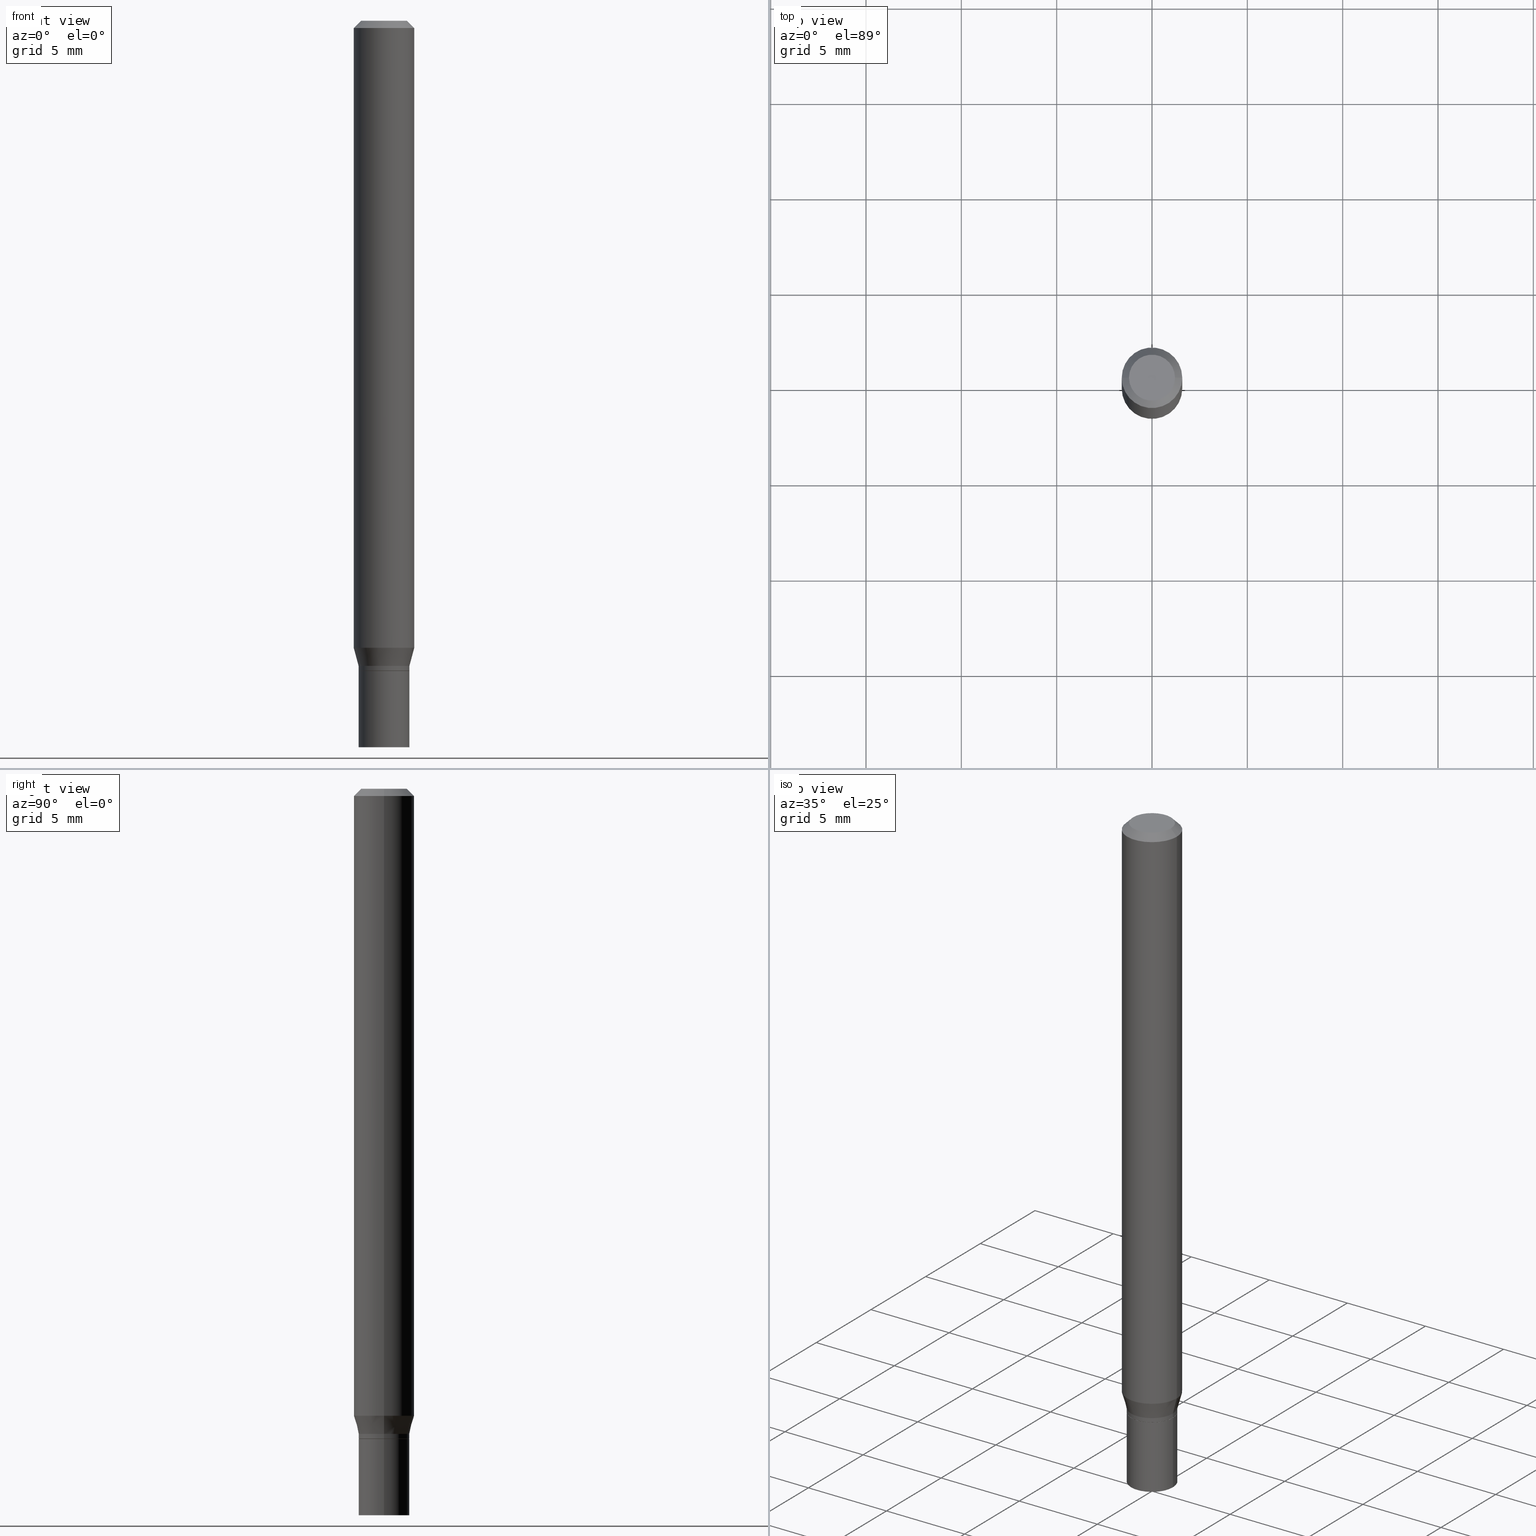
[diagram: canonical four-view strip — front | top / right | iso, engineering-drawing reading convention]
A machine part, canonical four-view strip (front | top / right | iso — engineering-drawing reading convention). The complete STEP part file that produces these views, byte-faithful:
ISO-10303-21;
HEADER;
FILE_DESCRIPTION (( 'STEP AP203' ),
    '1' );
FILE_NAME ('00438.STEP',
    '2024-03-19T21:18:29',
    ( '' ),
    ( '' ),
    'SwSTEP 2.0',
    'SolidWorks 2023',
    '' );
FILE_SCHEMA (( 'CONFIG_CONTROL_DESIGN' ));
ENDSEC;

DATA;
#1 = ORIENTED_EDGE ( 'NONE', *, *, #23, .T. ) ;
#2 = LINE ( 'NONE', #431, #10 ) ;
#3 = CALENDAR_DATE ( 2024, 19, 3 ) ;
#4 = CARTESIAN_POINT ( 'NONE',  ( -0.06250000000000000000, 3.840629472727444916E-16, -0.01499999999999999944 ) ) ;
#5 = DATE_AND_TIME ( #186, #297 ) ;
#6 = CARTESIAN_POINT ( 'NONE',  ( 0.06250000000000000000, -4.956784453192048385E-15, -1.294679491924311199 ) ) ;
#7 = ADVANCED_FACE ( 'NONE', ( #453 ), #20, .T. ) ;
#8 = ORIENTED_EDGE ( 'NONE', *, *, #212, .F. ) ;
#9 = DIRECTION ( 'NONE',  ( -2.445468806185136877E-29, 3.491481338843145188E-15, 1.000000000000000000 ) ) ;
#10 = VECTOR ( 'NONE', #287, 39.37007874015748143 ) ;
#11 = DIRECTION ( 'NONE',  ( 1.000000000000000000, -6.982962677686261189E-15, 0.000000000000000000 ) ) ;
#12 = ORIENTED_EDGE ( 'NONE', *, *, #95, .T. ) ;
#13 = EDGE_LOOP ( 'NONE', ( #306, #369, #1, #280 ) ) ;
#14 = LOCAL_TIME ( 17, 18, 29.00000000000000000, #260 ) ;
#15 = CARTESIAN_POINT ( 'NONE',  ( 0.000000000000000000, 0.000000000000000000, 0.000000000000000000 ) ) ;
#16 = ORIENTED_EDGE ( 'NONE', *, *, #146, .T. ) ;
#17 = EDGE_CURVE ( 'NONE', #321, #263, #427, .T. ) ;
#18 = FACE_OUTER_BOUND ( 'NONE', #201, .T. ) ;
#19 = DIRECTION ( 'NONE',  ( -2.445468806185136877E-29, 3.491481338843145188E-15, 1.000000000000000000 ) ) ;
#20 = CONICAL_SURFACE ( 'NONE', #61, 0.05249999999999991479, 0.2617993877991502960 ) ;
#21 = DIRECTION ( 'NONE',  ( 1.000000000000000000, -6.982962677686267499E-15, 4.852736867747366768E-29 ) ) ;
#22 = AXIS2_PLACEMENT_3D ( 'NONE', #185, #429, #352 ) ;
#23 = EDGE_CURVE ( 'NONE', #373, #321, #56, .T. ) ;
#24 = PERSON_AND_ORGANIZATION ( #366, #54 ) ;
#25 = APPROVAL ( #340, 'UNSPECIFIED' ) ;
#26 = FACE_OUTER_BOUND ( 'NONE', #91, .T. ) ;
#27 = ORIENTED_EDGE ( 'NONE', *, *, #17, .F. ) ;
#28 = CIRCLE ( 'NONE', #83, 0.05249999999999991479 ) ;
#29 = DIRECTION ( 'NONE',  ( 1.000000000000000000, -6.982962677686261189E-15, 0.000000000000000000 ) ) ;
#30 = DIRECTION ( 'NONE',  ( -2.445468806185136877E-29, 3.491481338843145188E-15, 1.000000000000000000 ) ) ;
#31 = EDGE_CURVE ( 'NONE', #458, #197, #28, .T. ) ;
#32 = PLANE ( 'NONE',  #22 ) ;
#33 = CARTESIAN_POINT ( 'NONE',  ( 0.05249999999999991479, -3.666055405785284205E-16, 2.559992807292862157E-30 ) ) ;
#34 = CARTESIAN_POINT ( 'NONE',  ( 3.257364449838602072E-29, -4.650653143339070101E-15, -1.332000000000000073 ) ) ;
#35 = DATE_AND_TIME ( #120, #121 ) ;
#36 = CARTESIAN_POINT ( 'NONE',  ( 0.000000000000000000, 0.000000000000000000, 0.000000000000000000 ) ) ;
#37 = DIRECTION ( 'NONE',  ( -1.000000000000000000, 6.982962677686266711E-15, 0.000000000000000000 ) ) ;
#38 = COORDINATED_UNIVERSAL_TIME_OFFSET ( 5, 0, .BEHIND. ) ;
#39 = DIRECTION ( 'NONE',  ( -2.445468806185136597E-29, 3.491481338843145583E-15, 1.000000000000000000 ) ) ;
#40 = DATE_AND_TIME ( #362, #96 ) ;
#41 = CIRCLE ( 'NONE', #105, 0.05249999999999999806 ) ;
#42 = PERSON_AND_ORGANIZATION ( #366, #54 ) ;
#43 = DESIGN_CONTEXT ( 'detailed design', #44, 'design' ) ;
#44 = APPLICATION_CONTEXT ( 'configuration controlled 3d designs of mechanical parts and assemblies' ) ;
#45 = VECTOR ( 'NONE', #9, 39.37007874015748143 ) ;
#46 = EDGE_CURVE ( 'NONE', #296, #235, #351, .T. ) ;
#47 = DIRECTION ( 'NONE',  ( 1.000000000000000000, -6.982962677686262766E-15, 0.000000000000000000 ) ) ;
#48 = EDGE_CURVE ( 'NONE', #284, #466, #344, .T. ) ;
#49 = CYLINDRICAL_SURFACE ( 'NONE', #134, 0.05249999999999991479 ) ;
#50 = ORIENTED_EDGE ( 'NONE', *, *, #320, .F. ) ;
#51 = EDGE_LOOP ( 'NONE', ( #192, #313, #404, #108 ) ) ;
#52 = PERSON_AND_ORGANIZATION_ROLE ( 'creator' ) ;
#53 = CARTESIAN_POINT ( 'NONE',  ( 3.316907271900976096E-16, 0.04749999999999999362, -2.653275547260257586E-16 ) ) ;
#54 = ORGANIZATION ( 'UNSPECIFIED', 'UNSPECIFIED', '' ) ;
#55 = CARTESIAN_POINT ( 'NONE',  ( 0.05249999999999999806, -5.052173497306030121E-15, -1.342000000000000082 ) ) ;
#56 = LINE ( 'NONE', #305, #234 ) ;
#57 = AXIS2_PLACEMENT_3D ( 'NONE', #132, #387, #230 ) ;
#58 = CLOSED_SHELL ( 'NONE', ( #438, #440, #269, #420 ) ) ;
#59 = CARTESIAN_POINT ( 'NONE',  ( 0.06250000000000000000, -4.888073874380388472E-16, -0.01499999999999999944 ) ) ;
#60 = EDGE_CURVE ( 'NONE', #298, #153, #405, .T. ) ;
#61 = AXIS2_PLACEMENT_3D ( 'NONE', #388, #348, #167 ) ;
#62 = EDGE_LOOP ( 'NONE', ( #124, #448 ) ) ;
#63 = EDGE_LOOP ( 'NONE', ( #441, #356, #425, #339 ) ) ;
#64 = DIRECTION ( 'NONE',  ( -0.2588190451025216277, 5.211531920934551831E-15, 0.9659258262890679791 ) ) ;
#65 = ORIENTED_EDGE ( 'NONE', *, *, #31, .F. ) ;
#66 = DIRECTION ( 'NONE',  ( 1.000000000000000000, 0.000000000000000000, 0.000000000000000000 ) ) ;
#67 = CARTESIAN_POINT ( 'NONE',  ( -0.04749999999999999362, 3.578768372314206562E-16, -1.989643822619551895E-16 ) ) ;
#68 = PERSON_AND_ORGANIZATION_ROLE ( 'design_owner' ) ;
#69 = ORIENTED_EDGE ( 'NONE', *, *, #316, .T. ) ;
#70 = LINE ( 'NONE', #33, #394 ) ;
#71 = DIRECTION ( 'NONE',  ( -2.445468806185136597E-29, 3.491481338843145583E-15, 1.000000000000000000 ) ) ;
#72 = ORIENTED_EDGE ( 'NONE', *, *, #403, .T. ) ;
#73 = FACE_OUTER_BOUND ( 'NONE', #445, .T. ) ;
#74 = ORIENTED_EDGE ( 'NONE', *, *, #169, .T. ) ;
#75 = AXIS2_PLACEMENT_3D ( 'NONE', #271, #415, #170 ) ;
#76 = ORIENTED_EDGE ( 'NONE', *, *, #138, .F. ) ;
#77 = CARTESIAN_POINT ( 'NONE',  ( 3.668203209277705088E-31, -5.237222008264718399E-17, -0.01499999999999999944 ) ) ;
#78 = APPROVAL_DATE_TIME ( #40, #326 ) ;
#79 = ORIENTED_EDGE ( 'NONE', *, *, #300, .F. ) ;
#80 = DIRECTION ( 'NONE',  ( 0.7071067811865522357, -7.319954787623271823E-15, -0.7071067811865427988 ) ) ;
#81 = AXIS2_PLACEMENT_3D ( 'NONE', #77, #117, #37 ) ;
#82 = FACE_OUTER_BOUND ( 'NONE', #337, .T. ) ;
#83 = AXIS2_PLACEMENT_3D ( 'NONE', #34, #39, #29 ) ;
#84 = ORIENTED_EDGE ( 'NONE', *, *, #208, .T. ) ;
#85 = CARTESIAN_POINT ( 'NONE',  ( 3.281819137900453057E-29, -4.685567956727500961E-15, -1.342000000000000082 ) ) ;
#86 = CC_DESIGN_APPROVAL ( #442, ( #87 ) ) ;
#87 = SECURITY_CLASSIFICATION ( '', '', #433 ) ;
#88 = ORIENTED_EDGE ( 'NONE', *, *, #237, .F. ) ;
#89 = CARTESIAN_POINT ( 'NONE',  ( 3.281819137900453057E-29, -4.685567956727500961E-15, -1.342000000000000082 ) ) ;
#90 = ORIENTED_EDGE ( 'NONE', *, *, #408, .F. ) ;
#91 = EDGE_LOOP ( 'NONE', ( #161, #274 ) ) ;
#92 = CARTESIAN_POINT ( 'NONE',  ( 3.257364449838602072E-29, -4.650653143339070101E-15, -1.332000000000000073 ) ) ;
#93 = AXIS2_PLACEMENT_3D ( 'NONE', #295, #372, #119 ) ;
#94 = ORIENTED_EDGE ( 'NONE', *, *, #289, .T. ) ;
#95 = EDGE_CURVE ( 'NONE', #197, #458, #156, .T. ) ;
#96 = LOCAL_TIME ( 17, 18, 29.00000000000000000, #331 ) ;
#97 = DIRECTION ( 'NONE',  ( 1.000000000000000000, -6.982962677686268288E-15, 0.000000000000000000 ) ) ;
#98 = CARTESIAN_POINT ( 'NONE',  ( 3.281819137900453057E-29, -4.685567956727500961E-15, -1.342000000000000082 ) ) ;
#99 = CARTESIAN_POINT ( 'NONE',  ( 0.05249999999999999806, -5.603827548843247337E-15, -1.500000000000000222 ) ) ;
#100 = DIRECTION ( 'NONE',  ( 0.000000000000000000, 0.000000000000000000, 1.000000000000000000 ) ) ;
#101 = APPROVAL_PERSON_ORGANIZATION ( #446, #25, #286 ) ;
#102 = CARTESIAN_POINT ( 'NONE',  ( -0.06250000000000000000, -1.842271543109589873E-15, -0.01499999999999999944 ) ) ;
#103 = DIRECTION ( 'NONE',  ( -2.445468806185136597E-29, 3.491481338843145583E-15, 1.000000000000000000 ) ) ;
#104 = ADVANCED_FACE ( 'NONE', ( #73 ), #324, .T. ) ;
#105 = AXIS2_PLACEMENT_3D ( 'NONE', #434, #361, #97 ) ;
#106 = DIRECTION ( 'NONE',  ( -2.445468806185136597E-29, 3.491481338843145583E-15, 1.000000000000000000 ) ) ;
#107 = APPLICATION_PROTOCOL_DEFINITION ( 'international standard', 'config_control_design', 1994, #118 ) ;
#108 = ORIENTED_EDGE ( 'NONE', *, *, #338, .F. ) ;
#109 = VECTOR ( 'NONE', #80, 39.37007874015748143 ) ;
#110 = AXIS2_PLACEMENT_3D ( 'NONE', #215, #244, #275 ) ;
#111 = CARTESIAN_POINT ( 'NONE',  ( -0.06250000000000000000, 4.440892098500626162E-16, -3.074334431409316114E-30 ) ) ;
#112 = DIRECTION ( 'NONE',  ( -2.445468806185136877E-29, 3.491481338843145188E-15, 1.000000000000000000 ) ) ;
#113 = ADVANCED_FACE ( 'NONE', ( #357 ), #400, .T. ) ;
#114 = APPROVAL_DATE_TIME ( #35, #25 ) ;
#115 = ORIENTED_EDGE ( 'NONE', *, *, #23, .F. ) ;
#116 = CARTESIAN_POINT ( 'NONE',  ( 3.281819137900453057E-29, -4.685567956727500961E-15, -1.342000000000000082 ) ) ;
#117 = DIRECTION ( 'NONE',  ( 2.445468806185136597E-29, -3.491481338843145583E-15, -1.000000000000000000 ) ) ;
#118 = APPLICATION_CONTEXT ( 'configuration controlled 3d designs of mechanical parts and assemblies' ) ;
#119 = DIRECTION ( 'NONE',  ( 1.000000000000000000, -6.982962677686267499E-15, 4.852736867747366768E-29 ) ) ;
#120 = CALENDAR_DATE ( 2024, 19, 3 ) ;
#121 = LOCAL_TIME ( 17, 18, 29.00000000000000000, #323 ) ;
#122 = CARTESIAN_POINT ( 'NONE',  ( 0.05249999999999991479, -5.050427756636607829E-15, -1.341500000000000137 ) ) ;
#123 = PRODUCT_DEFINITION ( 'UNKNOWN', '', #258, #43 ) ;
#124 = ORIENTED_EDGE ( 'NONE', *, *, #146, .F. ) ;
#125 = CC_DESIGN_PERSON_AND_ORGANIZATION_ASSIGNMENT ( #42, #191, ( #123 ) ) ;
#126 = CARTESIAN_POINT ( 'NONE',  ( 0.06250000000000000000, -4.811533449433679005E-16, -0.01499999999999999944 ) ) ;
#127 = DIRECTION ( 'NONE',  ( -2.445468806185136597E-29, 3.491481338843145583E-15, 1.000000000000000000 ) ) ;
#128 =( GEOMETRIC_REPRESENTATION_CONTEXT ( 3 ) GLOBAL_UNCERTAINTY_ASSIGNED_CONTEXT ( ( #380 ) ) GLOBAL_UNIT_ASSIGNED_CONTEXT ( ( #386, #345, #149 ) ) REPRESENTATION_CONTEXT ( 'NONE', 'WORKASPACE' ) );
#129 = EDGE_LOOP ( 'NONE', ( #16, #72, #164, #88 ) ) ;
#130 = ORIENTED_EDGE ( 'NONE', *, *, #204, .T. ) ;
#131 = LINE ( 'NONE', #267, #364 ) ;
#132 = CARTESIAN_POINT ( 'NONE',  ( 3.668203209277704895E-29, -5.237222008264718177E-15, -1.500000000000000222 ) ) ;
#133 = ORIENTED_EDGE ( 'NONE', *, *, #408, .T. ) ;
#134 = AXIS2_PLACEMENT_3D ( 'NONE', #15, #163, #376 ) ;
#135 = CIRCLE ( 'NONE', #193, 0.05199999999999999067 ) ;
#136 = LINE ( 'NONE', #342, #367 ) ;
#137 = PRODUCT_DEFINITION_SHAPE ( 'NONE', 'NONE',  #123 ) ;
#138 = EDGE_CURVE ( 'NONE', #398, #458, #2, .T. ) ;
#139 = DIRECTION ( 'NONE',  ( 2.438088387897960049E-29, -3.491481338843145188E-15, -1.000000000000000000 ) ) ;
#140 = MANIFOLD_SOLID_BREP ( 'Body-Move/Copy2[2]', #165 ) ;
#141 = LINE ( 'NONE', #459, #180 ) ;
#142 = CIRCLE ( 'NONE', #205, 0.05249999999999991479 ) ;
#143 = CARTESIAN_POINT ( 'NONE',  ( 3.280596403497361377E-29, -4.683822216058081035E-15, -1.341500000000000137 ) ) ;
#144 = ORIENTED_EDGE ( 'NONE', *, *, #395, .F. ) ;
#145 = ORIENTED_EDGE ( 'NONE', *, *, #60, .F. ) ;
#146 = EDGE_CURVE ( 'NONE', #466, #284, #135, .T. ) ;
#147 = DIRECTION ( 'NONE',  ( 1.000000000000000000, -6.982962677686265922E-15, 4.876176775795935793E-29 ) ) ;
#148 = CARTESIAN_POINT ( 'NONE',  ( 3.166098311508524347E-29, -4.520349285836657505E-15, -1.294679491924311199 ) ) ;
#149 =( NAMED_UNIT ( * ) SI_UNIT ( $, .STERADIAN. ) SOLID_ANGLE_UNIT ( ) );
#150 = EDGE_CURVE ( 'NONE', #263, #321, #41, .T. ) ;
#151 = EDGE_LOOP ( 'NONE', ( #447, #74 ) ) ;
#152 = DATE_AND_TIME ( #293, #399 ) ;
#153 = VERTEX_POINT ( 'NONE', #59 ) ;
#154 = CONICAL_SURFACE ( 'NONE', #81, 0.06250000000000000000, 0.7853981633974549403 ) ;
#155 = APPROVAL_ROLE ( '' ) ;
#156 = CIRCLE ( 'NONE', #418, 0.05249999999999991479 ) ;
#157 = CIRCLE ( 'NONE', #437, 0.06250000000000000000 ) ;
#158 = LINE ( 'NONE', #253, #214 ) ;
#159 = DIRECTION ( 'NONE',  ( -2.445468806185136597E-29, 3.491481338843145583E-15, 1.000000000000000000 ) ) ;
#160 = PERSON_AND_ORGANIZATION ( #366, #54 ) ;
#161 = ORIENTED_EDGE ( 'NONE', *, *, #17, .T. ) ;
#162 = APPROVAL_STATUS ( 'not_yet_approved' ) ;
#163 = DIRECTION ( 'NONE',  ( -2.445468806185136597E-29, 3.491481338843145583E-15, 1.000000000000000000 ) ) ;
#164 = ORIENTED_EDGE ( 'NONE', *, *, #365, .F. ) ;
#165 = CLOSED_SHELL ( 'NONE', ( #354, #309, #104, #272, #7, #199, #113, #227, #175, #370, #390, #194 ) ) ;
#166 = AXIS2_PLACEMENT_3D ( 'NONE', #241, #209, #21 ) ;
#167 = DIRECTION ( 'NONE',  ( 1.000000000000000000, -6.982962677686261189E-15, 0.000000000000000000 ) ) ;
#168 = PLANE ( 'NONE',  #423 ) ;
#169 = EDGE_CURVE ( 'NONE', #298, #406, #303, .T. ) ;
#170 = DIRECTION ( 'NONE',  ( 1.000000000000000000, -6.982962677686265922E-15, 4.876176775795935793E-29 ) ) ;
#171 = CC_DESIGN_PERSON_AND_ORGANIZATION_ASSIGNMENT ( #436, #301, ( #258 ) ) ;
#172 =( LENGTH_UNIT ( ) NAMED_UNIT ( * ) SI_UNIT ( $, .METRE. ) );
#173 = CARTESIAN_POINT ( 'NONE',  ( 0.000000000000000000, 0.000000000000000000, 0.000000000000000000 ) ) ;
#174 = CIRCLE ( 'NONE', #57, 0.05249999999999999806 ) ;
#175 = ADVANCED_FACE ( 'NONE', ( #308 ), #168, .F. ) ;
#176 = DIRECTION ( 'NONE',  ( -2.445468806185136597E-29, 3.491481338843145583E-15, 1.000000000000000000 ) ) ;
#177 = CARTESIAN_POINT ( 'NONE',  ( 3.281819137900453057E-29, -4.685567956727500961E-15, -1.342000000000000082 ) ) ;
#178 = CYLINDRICAL_SURFACE ( 'NONE', #414, 0.05249999999999999806 ) ;
#179 = FACE_OUTER_BOUND ( 'NONE', #291, .T. ) ;
#180 = VECTOR ( 'NONE', #349, 39.37007874015748143 ) ;
#181 = DIRECTION ( 'NONE',  ( -2.445468806185136597E-29, 3.491481338843145583E-15, 1.000000000000000000 ) ) ;
#182 = CARTESIAN_POINT ( 'NONE',  ( 3.576687321579069994E-29, -5.368277968210015545E-15, -1.500000000000000222 ) ) ;
#183 = ORIENTED_EDGE ( 'NONE', *, *, #237, .T. ) ;
#184 = ADVANCED_BREP_SHAPE_REPRESENTATION ( '00438', ( #283, #140, #451 ), #128 ) ;
#185 = CARTESIAN_POINT ( 'NONE',  ( 3.666055405785617499E-16, 0.05249999999999530736, -1.342000000000000304 ) ) ;
#186 = CALENDAR_DATE ( 2024, 19, 3 ) ;
#187 = CC_DESIGN_SECURITY_CLASSIFICATION ( #87, ( #258 ) ) ;
#188 = SHAPE_DEFINITION_REPRESENTATION ( #137, #184 ) ;
#189 = EDGE_LOOP ( 'NONE', ( #223, #232, #183, #381 ) ) ;
#190 = CARTESIAN_POINT ( 'NONE',  ( 3.668203209277705088E-31, -5.237222008264718399E-17, -0.01499999999999999944 ) ) ;
#191 = PERSON_AND_ORGANIZATION_ROLE ( 'creator' ) ;
#192 = ORIENTED_EDGE ( 'NONE', *, *, #365, .T. ) ;
#193 = AXIS2_PLACEMENT_3D ( 'NONE', #116, #252, #222 ) ;
#194 = ADVANCED_FACE ( 'NONE', ( #18 ), #49, .T. ) ;
#195 = DIRECTION ( 'NONE',  ( 0.2588190451025216277, 1.565188264969619995E-15, 0.9659258262890679791 ) ) ;
#196 = DATE_AND_TIME ( #3, #14 ) ;
#197 = VERTEX_POINT ( 'NONE', #294 ) ;
#198 = CC_DESIGN_DATE_AND_TIME_ASSIGNMENT ( #196, #413, ( #87 ) ) ;
#199 = ADVANCED_FACE ( 'NONE', ( #443 ), #220, .T. ) ;
#200 = CONICAL_SURFACE ( 'NONE', #421, 0.05199999999999999067, 0.7853981633974739252 ) ;
#201 = EDGE_LOOP ( 'NONE', ( #76, #84, #325, #65 ) ) ;
#202 = CARTESIAN_POINT ( 'NONE',  ( -0.05249999999999999806, -4.588360046222057034E-15, -1.342000000000000082 ) ) ;
#203 = LINE ( 'NONE', #336, #45 ) ;
#204 = EDGE_CURVE ( 'NONE', #458, #296, #131, .T. ) ;
#205 = AXIS2_PLACEMENT_3D ( 'NONE', #143, #302, #11 ) ;
#206 = DIRECTION ( 'NONE',  ( -2.445468806185136597E-29, 3.491481338843145583E-15, 1.000000000000000000 ) ) ;
#207 = AXIS2_PLACEMENT_3D ( 'NONE', #173, #424, #312 ) ;
#208 = EDGE_CURVE ( 'NONE', #398, #248, #142, .T. ) ;
#209 = DIRECTION ( 'NONE',  ( -2.445468806185136597E-29, 3.491481338843145583E-15, 1.000000000000000000 ) ) ;
#210 = AXIS2_PLACEMENT_3D ( 'NONE', #177, #314, #374 ) ;
#211 = MECHANICAL_CONTEXT ( 'NONE', #118, 'mechanical' ) ;
#212 = EDGE_CURVE ( 'NONE', #334, #373, #174, .T. ) ;
#213 = DIRECTION ( 'NONE',  ( 1.000000000000000000, -6.982962677686268288E-15, 0.000000000000000000 ) ) ;
#214 = VECTOR ( 'NONE', #224, 39.37007874015748143 ) ;
#215 = CARTESIAN_POINT ( 'NONE',  ( 3.280596403497361377E-29, -4.683822216058081035E-15, -1.341500000000000137 ) ) ;
#216 = DIRECTION ( 'NONE',  ( -2.438088387897960049E-29, 3.491481338843145188E-15, 1.000000000000000000 ) ) ;
#217 = AXIS2_PLACEMENT_3D ( 'NONE', #182, #216, #147 ) ;
#218 = EDGE_CURVE ( 'NONE', #406, #298, #432, .T. ) ;
#219 = PLANE ( 'NONE',  #217 ) ;
#220 = CONICAL_SURFACE ( 'NONE', #261, 0.05249999999999991479, 0.2617993877991502960 ) ;
#221 = DIRECTION ( 'NONE',  ( 2.445468806185136597E-29, -3.491481338843145583E-15, -1.000000000000000000 ) ) ;
#222 = DIRECTION ( 'NONE',  ( 1.000000000000000000, -6.982962677686258822E-15, 0.000000000000000000 ) ) ;
#223 = ORIENTED_EDGE ( 'NONE', *, *, #403, .F. ) ;
#224 = DIRECTION ( 'NONE',  ( 0.7071067811865656694, -2.468850131082446387E-15, 0.7071067811865294761 ) ) ;
#225 = APPROVAL_ROLE ( '' ) ;
#226 = AXIS2_PLACEMENT_3D ( 'NONE', #148, #181, #317 ) ;
#227 = ADVANCED_FACE ( 'NONE', ( #82 ), #154, .T. ) ;
#228 = CARTESIAN_POINT ( 'NONE',  ( 3.166098311508524347E-29, -4.520349285836657505E-15, -1.294679491924311199 ) ) ;
#229 = APPROVAL_PERSON_ORGANIZATION ( #329, #326, #225 ) ;
#230 = DIRECTION ( 'NONE',  ( 1.000000000000000000, -6.982962677686268288E-15, 0.000000000000000000 ) ) ;
#231 = DIRECTION ( 'NONE',  ( -0.7071067811865522357, 2.468850131082306364E-15, -0.7071067811865427988 ) ) ;
#232 = ORIENTED_EDGE ( 'NONE', *, *, #48, .T. ) ;
#233 = ORIENTED_EDGE ( 'NONE', *, *, #169, .F. ) ;
#234 = VECTOR ( 'NONE', #255, 39.37007874015748143 ) ;
#235 = VERTEX_POINT ( 'NONE', #6 ) ;
#236 = CONICAL_SURFACE ( 'NONE', #327, 0.05199999999999999067, 0.7853981633974739252 ) ;
#237 = EDGE_CURVE ( 'NONE', #466, #248, #158, .T. ) ;
#238 = DIRECTION ( 'NONE',  ( -1.000000000000000000, 6.982962677686265922E-15, -4.876176775795935793E-29 ) ) ;
#239 = CC_DESIGN_PERSON_AND_ORGANIZATION_ASSIGNMENT ( #464, #52, ( #258 ) ) ;
#240 = PRODUCT ( '00438', '00438', '', ( #211 ) ) ;
#241 = CARTESIAN_POINT ( 'NONE',  ( 4.865611903635008365E-45, -6.946804277620623666E-31, -1.989643822619527736E-16 ) ) ;
#242 = CARTESIAN_POINT ( 'NONE',  ( 3.668203209277704895E-29, -5.237222008264718177E-15, -1.500000000000000222 ) ) ;
#243 = VECTOR ( 'NONE', #195, 39.37007874015748143 ) ;
#244 = DIRECTION ( 'NONE',  ( -2.445468806185136597E-29, 3.491481338843145583E-15, 1.000000000000000000 ) ) ;
#245 = CARTESIAN_POINT ( 'NONE',  ( -0.05249999999999991479, -4.310787279784027712E-15, -1.341500000000000137 ) ) ;
#246 = DIRECTION ( 'NONE',  ( 1.000000000000000000, -6.982962677686258822E-15, 0.000000000000000000 ) ) ;
#247 = DIMENSIONAL_EXPONENTS ( 1.000000000000000000, 0.000000000000000000, 0.000000000000000000, 0.000000000000000000, 0.000000000000000000, 0.000000000000000000, 0.000000000000000000 ) ;
#248 = VERTEX_POINT ( 'NONE', #122 ) ;
#249 = AXIS2_PLACEMENT_3D ( 'NONE', #346, #176, #391 ) ;
#250 = FACE_OUTER_BOUND ( 'NONE', #292, .T. ) ;
#251 = DIRECTION ( 'NONE',  ( 1.000000000000000000, -6.982962677686261189E-15, 0.000000000000000000 ) ) ;
#252 = DIRECTION ( 'NONE',  ( -2.445468806185136597E-29, 3.491481338843145583E-15, 1.000000000000000000 ) ) ;
#253 = CARTESIAN_POINT ( 'NONE',  ( 0.05199999999999999067, -5.048682015967186325E-15, -1.342000000000000082 ) ) ;
#254 = EDGE_CURVE ( 'NONE', #235, #296, #347, .T. ) ;
#255 = DIRECTION ( 'NONE',  ( -2.445468806185136877E-29, 3.491481338843145188E-15, 1.000000000000000000 ) ) ;
#256 = ORIENTED_EDGE ( 'NONE', *, *, #254, .F. ) ;
#257 = DIRECTION ( 'NONE',  ( -2.445468806185136597E-29, 3.491481338843145583E-15, 1.000000000000000000 ) ) ;
#258 = PRODUCT_DEFINITION_FORMATION_WITH_SPECIFIED_SOURCE ( 'ANY', '', #240, .NOT_KNOWN. ) ;
#259 = DIRECTION ( 'NONE',  ( -2.445468806185136597E-29, 3.491481338843145583E-15, 1.000000000000000000 ) ) ;
#260 = COORDINATED_UNIVERSAL_TIME_OFFSET ( 5, 0, .BEHIND. ) ;
#261 = AXIS2_PLACEMENT_3D ( 'NONE', #92, #206, #341 ) ;
#262 = PRODUCT_RELATED_PRODUCT_CATEGORY ( 'detail', '', ( #240 ) ) ;
#263 = VERTEX_POINT ( 'NONE', #202 ) ;
#264 = LINE ( 'NONE', #4, #465 ) ;
#265 = ORIENTED_EDGE ( 'NONE', *, *, #218, .F. ) ;
#266 = PERSON_AND_ORGANIZATION_ROLE ( 'classification_officer' ) ;
#267 = CARTESIAN_POINT ( 'NONE',  ( -0.05249999999999991479, -4.277618207065018355E-15, -1.332000000000000073 ) ) ;
#268 = EDGE_LOOP ( 'NONE', ( #393, #428, #444, #90 ) ) ;
#269 = ADVANCED_FACE ( 'NONE', ( #335 ), #350, .T. ) ;
#270 = VECTOR ( 'NONE', #30, 39.37007874015748143 ) ;
#271 = CARTESIAN_POINT ( 'NONE',  ( 3.281819137900453057E-29, -4.685567956727500961E-15, -1.342000000000000082 ) ) ;
#272 = ADVANCED_FACE ( 'NONE', ( #179 ), #311, .T. ) ;
#273 = LENGTH_MEASURE_WITH_UNIT ( LENGTH_MEASURE( 0.02539999999999999897 ), #172 );
#274 = ORIENTED_EDGE ( 'NONE', *, *, #150, .T. ) ;
#275 = DIRECTION ( 'NONE',  ( 1.000000000000000000, -6.982962677686261189E-15, 0.000000000000000000 ) ) ;
#276 = FACE_OUTER_BOUND ( 'NONE', #384, .T. ) ;
#277 = CC_DESIGN_PERSON_AND_ORGANIZATION_ASSIGNMENT ( #24, #68, ( #240 ) ) ;
#278 = ORIENTED_EDGE ( 'NONE', *, *, #379, .F. ) ;
#279 = DIRECTION ( 'NONE',  ( -2.445468806185136597E-29, 3.491481338843145583E-15, 1.000000000000000000 ) ) ;
#280 = ORIENTED_EDGE ( 'NONE', *, *, #150, .F. ) ;
#281 = APPROVAL_PERSON_ORGANIZATION ( #160, #442, #155 ) ;
#282 = CC_DESIGN_APPROVAL ( #326, ( #123 ) ) ;
#283 = MANIFOLD_SOLID_BREP ( 'Body-Move/Copy2[1]', #58 ) ;
#284 = VERTEX_POINT ( 'NONE', #457 ) ;
#285 = DIRECTION ( 'NONE',  ( 1.000000000000000000, -6.982962677686266711E-15, 4.876176775795935793E-29 ) ) ;
#286 = APPROVAL_ROLE ( '' ) ;
#287 = DIRECTION ( 'NONE',  ( -2.445468806185136877E-29, 3.491481338843145188E-15, 1.000000000000000000 ) ) ;
#288 = APPROVAL_DATE_TIME ( #152, #442 ) ;
#289 = EDGE_CURVE ( 'NONE', #153, #412, #430, .T. ) ;
#290 = DIRECTION ( 'NONE',  ( -1.000000000000000000, 6.982962677686266711E-15, 0.000000000000000000 ) ) ;
#291 = EDGE_LOOP ( 'NONE', ( #409, #318, #299, #278 ) ) ;
#292 = EDGE_LOOP ( 'NONE', ( #439, #69, #27, #115 ) ) ;
#293 = CALENDAR_DATE ( 2024, 19, 3 ) ;
#294 = CARTESIAN_POINT ( 'NONE',  ( 0.05249999999999991479, -5.017258683917598472E-15, -1.332000000000000073 ) ) ;
#295 = CARTESIAN_POINT ( 'NONE',  ( 4.865611903635008365E-45, -6.946804277620623666E-31, -1.989643822619527736E-16 ) ) ;
#296 = VERTEX_POINT ( 'NONE', #307 ) ;
#297 = LOCAL_TIME ( 17, 18, 29.00000000000000000, #38 ) ;
#298 = VERTEX_POINT ( 'NONE', #304 ) ;
#299 = ORIENTED_EDGE ( 'NONE', *, *, #289, .F. ) ;
#300 = EDGE_CURVE ( 'NONE', #197, #235, #407, .T. ) ;
#301 = PERSON_AND_ORGANIZATION_ROLE ( 'design_supplier' ) ;
#302 = DIRECTION ( 'NONE',  ( -2.445468806185136597E-29, 3.491481338843145583E-15, 1.000000000000000000 ) ) ;
#303 = CIRCLE ( 'NONE', #166, 0.04749999999999999362 ) ;
#304 = CARTESIAN_POINT ( 'NONE',  ( 0.04749999999999999362, -4.035134999187581581E-16, -1.989643822619502098E-16 ) ) ;
#305 = CARTESIAN_POINT ( 'NONE',  ( 0.05249999999999999806, -3.666055405785289629E-16, 2.559992807292866011E-30 ) ) ;
#306 = ORIENTED_EDGE ( 'NONE', *, *, #316, .F. ) ;
#307 = CARTESIAN_POINT ( 'NONE',  ( -0.06250000000000000000, -4.076260075986594889E-15, -1.294679491924311199 ) ) ;
#308 = FACE_OUTER_BOUND ( 'NONE', #151, .T. ) ;
#309 = ADVANCED_FACE ( 'NONE', ( #332 ), #200, .T. ) ;
#310 = AXIS2_PLACEMENT_3D ( 'NONE', #461, #159, #454 ) ;
#311 = CYLINDRICAL_SURFACE ( 'NONE', #207, 0.06250000000000000000 ) ;
#312 = DIRECTION ( 'NONE',  ( 1.000000000000000000, -6.982962677686266711E-15, 4.876176775795935793E-29 ) ) ;
#313 = ORIENTED_EDGE ( 'NONE', *, *, #138, .T. ) ;
#314 = DIRECTION ( 'NONE',  ( -2.445468806185136597E-29, 3.491481338843145583E-15, 1.000000000000000000 ) ) ;
#315 = CIRCLE ( 'NONE', #110, 0.05249999999999991479 ) ;
#316 = EDGE_CURVE ( 'NONE', #334, #263, #203, .T. ) ;
#317 = DIRECTION ( 'NONE',  ( 1.000000000000000000, -6.982962677686262766E-15, 0.000000000000000000 ) ) ;
#318 = ORIENTED_EDGE ( 'NONE', *, *, #435, .T. ) ;
#319 = CARTESIAN_POINT ( 'NONE',  ( 0.000000000000000000, 0.000000000000000000, 0.000000000000000000 ) ) ;
#320 = EDGE_CURVE ( 'NONE', #406, #412, #264, .T. ) ;
#321 = VERTEX_POINT ( 'NONE', #55 ) ;
#322 = FACE_OUTER_BOUND ( 'NONE', #51, .T. ) ;
#323 = COORDINATED_UNIVERSAL_TIME_OFFSET ( 5, 0, .BEHIND. ) ;
#324 = CONICAL_SURFACE ( 'NONE', #450, 0.06250000000000000000, 0.7853981633974549403 ) ;
#325 = ORIENTED_EDGE ( 'NONE', *, *, #338, .T. ) ;
#326 = APPROVAL ( #162, 'UNSPECIFIED' ) ;
#327 = AXIS2_PLACEMENT_3D ( 'NONE', #98, #103, #246 ) ;
#328 = DIRECTION ( 'NONE',  ( -2.445468806185136597E-29, 3.491481338843145583E-15, 1.000000000000000000 ) ) ;
#329 = PERSON_AND_ORGANIZATION ( #366, #54 ) ;
#330 = DIRECTION ( 'NONE',  ( 1.000000000000000000, -6.982962677686258822E-15, 0.000000000000000000 ) ) ;
#331 = COORDINATED_UNIVERSAL_TIME_OFFSET ( 5, 0, .BEHIND. ) ;
#332 = FACE_OUTER_BOUND ( 'NONE', #129, .T. ) ;
#333 = ORIENTED_EDGE ( 'NONE', *, *, #60, .T. ) ;
#334 = VERTEX_POINT ( 'NONE', #401 ) ;
#335 = FACE_OUTER_BOUND ( 'NONE', #13, .T. ) ;
#336 = CARTESIAN_POINT ( 'NONE',  ( -0.05249999999999999806, 3.730349362740525838E-16, -2.582440922383825311E-30 ) ) ;
#337 = EDGE_LOOP ( 'NONE', ( #145, #265, #460, #133 ) ) ;
#338 = EDGE_CURVE ( 'NONE', #248, #197, #70, .T. ) ;
#339 = ORIENTED_EDGE ( 'NONE', *, *, #46, .F. ) ;
#340 = APPROVAL_STATUS ( 'not_yet_approved' ) ;
#341 = DIRECTION ( 'NONE',  ( 1.000000000000000000, -6.982962677686261189E-15, 0.000000000000000000 ) ) ;
#342 = CARTESIAN_POINT ( 'NONE',  ( 0.06250000000000000000, -4.364351673553916694E-16, 3.047610484872459871E-30 ) ) ;
#343 = PLANE ( 'NONE',  #75 ) ;
#344 = CIRCLE ( 'NONE', #463, 0.05199999999999999067 ) ;
#345 =( NAMED_UNIT ( * ) PLANE_ANGLE_UNIT ( ) SI_UNIT ( $, .RADIAN. ) );
#346 = CARTESIAN_POINT ( 'NONE',  ( 3.668203209277705088E-31, -5.237222008264718399E-17, -0.01499999999999999944 ) ) ;
#347 = CIRCLE ( 'NONE', #377, 0.06250000000000000000 ) ;
#348 = DIRECTION ( 'NONE',  ( -2.445468806185136597E-29, 3.491481338843145583E-15, 1.000000000000000000 ) ) ;
#349 = DIRECTION ( 'NONE',  ( -0.7071067811865656694, 7.493145998870420424E-15, 0.7071067811865294761 ) ) ;
#350 = CYLINDRICAL_SURFACE ( 'NONE', #417, 0.05249999999999999806 ) ;
#351 = CIRCLE ( 'NONE', #226, 0.06250000000000000000 ) ;
#352 = DIRECTION ( 'NONE',  ( -1.000000000000000000, 6.982962677686265922E-15, -4.876176775795935793E-29 ) ) ;
#353 = CARTESIAN_POINT ( 'NONE',  ( 3.668203209277705088E-31, -5.237222008264718399E-17, -0.01499999999999999944 ) ) ;
#354 = ADVANCED_FACE ( 'NONE', ( #322 ), #359, .T. ) ;
#355 = CARTESIAN_POINT ( 'NONE',  ( -0.05249999999999991479, -4.176939141525806622E-15, -1.332000000000000073 ) ) ;
#356 = ORIENTED_EDGE ( 'NONE', *, *, #31, .T. ) ;
#357 = FACE_OUTER_BOUND ( 'NONE', #268, .T. ) ;
#358 = PERSON_AND_ORGANIZATION ( #366, #54 ) ;
#359 = CYLINDRICAL_SURFACE ( 'NONE', #310, 0.05249999999999991479 ) ;
#360 = CC_DESIGN_APPROVAL ( #25, ( #258 ) ) ;
#361 = DIRECTION ( 'NONE',  ( -2.445468806185136597E-29, 3.491481338843145583E-15, 1.000000000000000000 ) ) ;
#362 = CALENDAR_DATE ( 2024, 19, 3 ) ;
#363 = DATE_TIME_ROLE ( 'creation_date' ) ;
#364 = VECTOR ( 'NONE', #64, 39.37007874015748143 ) ;
#365 = EDGE_CURVE ( 'NONE', #248, #398, #315, .T. ) ;
#366 = PERSON ( 'UNSPECIFIED', 'UNSPECIFIED', 'UNSPECIFIED', ('UNSPECIFIED'), ('UNSPECIFIED'), ('UNSPECIFIED') ) ;
#367 = VECTOR ( 'NONE', #19, 39.37007874015748143 ) ;
#368 = DIRECTION ( 'NONE',  ( -2.445468806185136597E-29, 3.491481338843145583E-15, 1.000000000000000000 ) ) ;
#369 = ORIENTED_EDGE ( 'NONE', *, *, #212, .T. ) ;
#370 = ADVANCED_FACE ( 'NONE', ( #411 ), #343, .F. ) ;
#371 = DIRECTION ( 'NONE',  ( 1.000000000000000000, -6.982962677686258822E-15, 0.000000000000000000 ) ) ;
#372 = DIRECTION ( 'NONE',  ( -2.445468806185136597E-29, 3.491481338843145583E-15, 1.000000000000000000 ) ) ;
#373 = VERTEX_POINT ( 'NONE', #99 ) ;
#374 = DIRECTION ( 'NONE',  ( 1.000000000000000000, -6.982962677686268288E-15, 0.000000000000000000 ) ) ;
#375 = EDGE_LOOP ( 'NONE', ( #12, #130, #256, #79 ) ) ;
#376 = DIRECTION ( 'NONE',  ( 1.000000000000000000, -6.982962677686266711E-15, 4.876176775795935793E-29 ) ) ;
#377 = AXIS2_PLACEMENT_3D ( 'NONE', #228, #368, #47 ) ;
#378 = AXIS2_PLACEMENT_3D ( 'NONE', #36, #328, #285 ) ;
#379 = EDGE_CURVE ( 'NONE', #235, #153, #136, .T. ) ;
#380 = UNCERTAINTY_MEASURE_WITH_UNIT (LENGTH_MEASURE( 1.000000000000000082E-05 ), #386, 'distance_accuracy_value', 'NONE');
#381 = ORIENTED_EDGE ( 'NONE', *, *, #208, .F. ) ;
#382 = DIRECTION ( 'NONE',  ( 1.000000000000000000, -6.982962677686265922E-15, 4.876176775795935232E-29 ) ) ;
#383 = CC_DESIGN_PERSON_AND_ORGANIZATION_ASSIGNMENT ( #358, #266, ( #87 ) ) ;
#384 = EDGE_LOOP ( 'NONE', ( #144, #8 ) ) ;
#385 = AXIS2_PLACEMENT_3D ( 'NONE', #242, #279, #213 ) ;
#386 =( CONVERSION_BASED_UNIT ( 'INCH', #273 ) LENGTH_UNIT ( ) NAMED_UNIT ( #247 ) );
#387 = DIRECTION ( 'NONE',  ( -2.445468806185136597E-29, 3.491481338843145583E-15, 1.000000000000000000 ) ) ;
#388 = CARTESIAN_POINT ( 'NONE',  ( 3.257364449838602072E-29, -4.650653143339070101E-15, -1.332000000000000073 ) ) ;
#389 = DIRECTION ( 'NONE',  ( 1.000000000000000000, -6.982962677686266711E-15, 0.000000000000000000 ) ) ;
#390 = ADVANCED_FACE ( 'NONE', ( #449 ), #236, .T. ) ;
#391 = DIRECTION ( 'NONE',  ( 1.000000000000000000, -6.982962677686266711E-15, 0.000000000000000000 ) ) ;
#392 = LINE ( 'NONE', #111, #270 ) ;
#393 = ORIENTED_EDGE ( 'NONE', *, *, #435, .F. ) ;
#394 = VECTOR ( 'NONE', #112, 39.37007874015748143 ) ;
#395 = EDGE_CURVE ( 'NONE', #373, #334, #456, .T. ) ;
#396 = DIRECTION ( 'NONE',  ( 1.000000000000000000, -6.982962677686265922E-15, 4.876176775795935232E-29 ) ) ;
#397 = APPROVAL_STATUS ( 'not_yet_approved' ) ;
#398 = VERTEX_POINT ( 'NONE', #245 ) ;
#399 = LOCAL_TIME ( 17, 18, 29.00000000000000000, #402 ) ;
#400 = CYLINDRICAL_SURFACE ( 'NONE', #378, 0.06250000000000000000 ) ;
#401 = CARTESIAN_POINT ( 'NONE',  ( -0.05249999999999999806, -4.588360046222057034E-15, -1.500000000000000222 ) ) ;
#402 = COORDINATED_UNIVERSAL_TIME_OFFSET ( 5, 0, .BEHIND. ) ;
#403 = EDGE_CURVE ( 'NONE', #284, #398, #141, .T. ) ;
#404 = ORIENTED_EDGE ( 'NONE', *, *, #95, .F. ) ;
#405 = LINE ( 'NONE', #126, #109 ) ;
#406 = VERTEX_POINT ( 'NONE', #67 ) ;
#407 = LINE ( 'NONE', #410, #243 ) ;
#408 = EDGE_CURVE ( 'NONE', #412, #153, #157, .T. ) ;
#409 = ORIENTED_EDGE ( 'NONE', *, *, #254, .T. ) ;
#410 = CARTESIAN_POINT ( 'NONE',  ( 0.05249999999999991479, -5.017258683917598472E-15, -1.332000000000000073 ) ) ;
#411 = FACE_OUTER_BOUND ( 'NONE', #62, .T. ) ;
#412 = VERTEX_POINT ( 'NONE', #102 ) ;
#413 = DATE_TIME_ROLE ( 'classification_date' ) ;
#414 = AXIS2_PLACEMENT_3D ( 'NONE', #319, #71, #396 ) ;
#415 = DIRECTION ( 'NONE',  ( -2.438088387897960049E-29, 3.491481338843145188E-15, 1.000000000000000000 ) ) ;
#416 = CARTESIAN_POINT ( 'NONE',  ( 0.000000000000000000, 0.000000000000000000, 0.000000000000000000 ) ) ;
#417 = AXIS2_PLACEMENT_3D ( 'NONE', #419, #106, #382 ) ;
#418 = AXIS2_PLACEMENT_3D ( 'NONE', #462, #257, #251 ) ;
#419 = CARTESIAN_POINT ( 'NONE',  ( 0.000000000000000000, 0.000000000000000000, 0.000000000000000000 ) ) ;
#420 = ADVANCED_FACE ( 'NONE', ( #26 ), #32, .F. ) ;
#421 = AXIS2_PLACEMENT_3D ( 'NONE', #85, #127, #330 ) ;
#422 = DIRECTION ( 'NONE',  ( -2.445468806185136597E-29, 3.491481338843145583E-15, 1.000000000000000000 ) ) ;
#423 = AXIS2_PLACEMENT_3D ( 'NONE', #53, #139, #238 ) ;
#424 = DIRECTION ( 'NONE',  ( -2.445468806185136597E-29, 3.491481338843145583E-15, 1.000000000000000000 ) ) ;
#425 = ORIENTED_EDGE ( 'NONE', *, *, #300, .T. ) ;
#426 = CARTESIAN_POINT ( 'NONE',  ( 0.05199999999999999067, -5.048682015967186325E-15, -1.342000000000000082 ) ) ;
#427 = CIRCLE ( 'NONE', #210, 0.05249999999999999806 ) ;
#428 = ORIENTED_EDGE ( 'NONE', *, *, #46, .T. ) ;
#429 = DIRECTION ( 'NONE',  ( 2.438088387897960049E-29, -3.491481338843145188E-15, -1.000000000000000000 ) ) ;
#430 = CIRCLE ( 'NONE', #249, 0.06250000000000000000 ) ;
#431 = CARTESIAN_POINT ( 'NONE',  ( -0.05249999999999991479, 3.730349362740519921E-16, -2.582440922383821458E-30 ) ) ;
#432 = CIRCLE ( 'NONE', #93, 0.04749999999999999362 ) ;
#433 = SECURITY_CLASSIFICATION_LEVEL ( 'unclassified' ) ;
#434 = CARTESIAN_POINT ( 'NONE',  ( 3.281819137900453057E-29, -4.685567956727500961E-15, -1.342000000000000082 ) ) ;
#435 = EDGE_CURVE ( 'NONE', #296, #412, #392, .T. ) ;
#436 = PERSON_AND_ORGANIZATION ( #366, #54 ) ;
#437 = AXIS2_PLACEMENT_3D ( 'NONE', #353, #422, #389 ) ;
#438 = ADVANCED_FACE ( 'NONE', ( #250 ), #178, .T. ) ;
#439 = ORIENTED_EDGE ( 'NONE', *, *, #395, .T. ) ;
#440 = ADVANCED_FACE ( 'NONE', ( #276 ), #219, .F. ) ;
#441 = ORIENTED_EDGE ( 'NONE', *, *, #204, .F. ) ;
#442 = APPROVAL ( #397, 'UNSPECIFIED' ) ;
#443 = FACE_OUTER_BOUND ( 'NONE', #63, .T. ) ;
#444 = ORIENTED_EDGE ( 'NONE', *, *, #379, .T. ) ;
#445 = EDGE_LOOP ( 'NONE', ( #233, #333, #94, #50 ) ) ;
#446 = PERSON_AND_ORGANIZATION ( #366, #54 ) ;
#447 = ORIENTED_EDGE ( 'NONE', *, *, #218, .T. ) ;
#448 = ORIENTED_EDGE ( 'NONE', *, *, #48, .F. ) ;
#449 = FACE_OUTER_BOUND ( 'NONE', #189, .T. ) ;
#450 = AXIS2_PLACEMENT_3D ( 'NONE', #190, #221, #290 ) ;
#451 = AXIS2_PLACEMENT_3D ( 'NONE', #416, #100, #66 ) ;
#452 = CC_DESIGN_DATE_AND_TIME_ASSIGNMENT ( #5, #363, ( #123 ) ) ;
#453 = FACE_OUTER_BOUND ( 'NONE', #375, .T. ) ;
#454 = DIRECTION ( 'NONE',  ( 1.000000000000000000, -6.982962677686266711E-15, 4.876176775795935793E-29 ) ) ;
#455 = APPLICATION_PROTOCOL_DEFINITION ( 'international standard', 'config_control_design', 1994, #44 ) ;
#456 = CIRCLE ( 'NONE', #385, 0.05249999999999999806 ) ;
#457 = CARTESIAN_POINT ( 'NONE',  ( -0.05199999999999999067, -4.313436506958138124E-15, -1.342000000000000082 ) ) ;
#458 = VERTEX_POINT ( 'NONE', #355 ) ;
#459 = CARTESIAN_POINT ( 'NONE',  ( -0.05199999999999999067, -4.316085734132249325E-15, -1.342000000000000082 ) ) ;
#460 = ORIENTED_EDGE ( 'NONE', *, *, #320, .T. ) ;
#461 = CARTESIAN_POINT ( 'NONE',  ( 0.000000000000000000, 0.000000000000000000, 0.000000000000000000 ) ) ;
#462 = CARTESIAN_POINT ( 'NONE',  ( 3.257364449838602072E-29, -4.650653143339070101E-15, -1.332000000000000073 ) ) ;
#463 = AXIS2_PLACEMENT_3D ( 'NONE', #89, #259, #371 ) ;
#464 = PERSON_AND_ORGANIZATION ( #366, #54 ) ;
#465 = VECTOR ( 'NONE', #231, 39.37007874015748143 ) ;
#466 = VERTEX_POINT ( 'NONE', #426 ) ;
ENDSEC;
END-ISO-10303-21;
